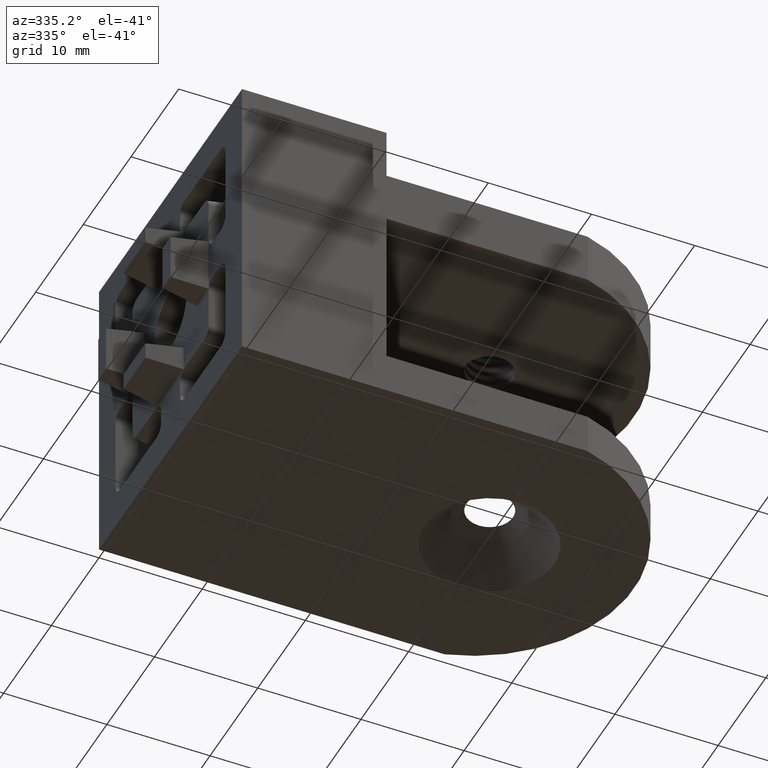
[diagram: clean part render]
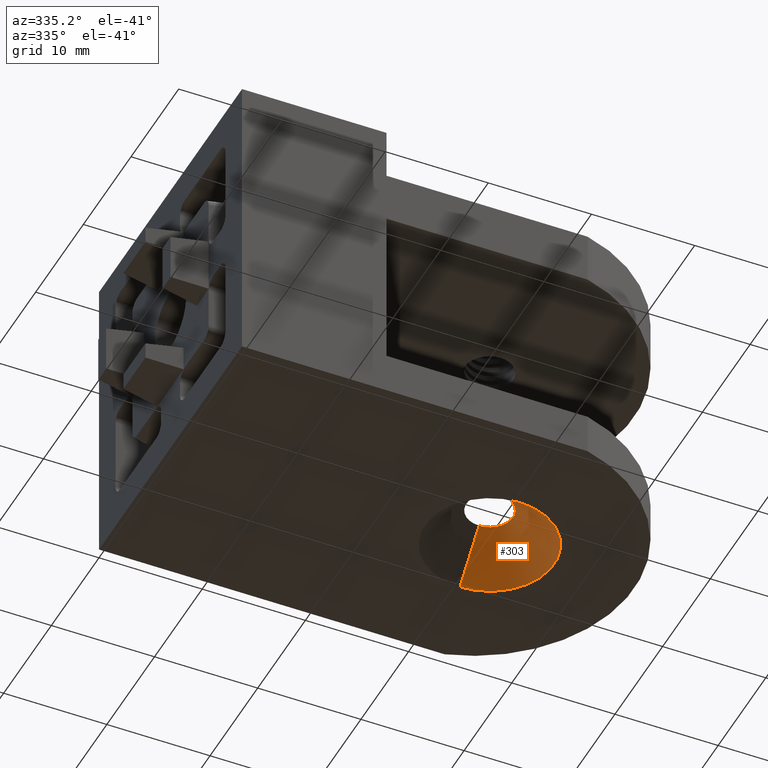
[diagram: same view with one face highlighted and labeled with its STEP entity id]
A machine part, auxiliary view. The second image highlights one B-rep face of the part: STEP entity #303.
In plain terms, the highlighted conical surface has half-angle 45 deg.
Its self-contained STEP definition (entity closure, byte-faithful):
#278 = EDGE_CURVE ( 'NONE', #1638, #1640, #1310, .T. ) ;
#281 = EDGE_CURVE ( 'NONE', #1626, #1631, #1315, .T. ) ;
#303 = ADVANCED_FACE ( 'NONE', ( #1345 ), #1346, .F. ) ;
#519 = CARTESIAN_POINT ( 'NONE',  ( 30.93645604300000000, 17.24999999999999600, -26.00000000000000400 ) ) ;
#520 = DIRECTION ( 'NONE',  ( 8.406408171397821100E-031, 0.7071067811865483500, -0.7071067811865466800 ) ) ;
#526 = CARTESIAN_POINT ( 'NONE',  ( 30.93645604300000000, 12.75000000000000200, -26.00000000000000400 ) ) ;
#527 = DIRECTION ( 'NONE',  ( 8.659560562355020400E-017, -0.7071067811865472400, -0.7071067811865479100 ) ) ;
#1310 = LINE ( 'NONE', #519, #1312 ) ;
#1312 = VECTOR ( 'NONE', #520, 1000.000000000000000 ) ;
#1315 = LINE ( 'NONE', #526, #1317 ) ;
#1317 = VECTOR ( 'NONE', #527, 999.9999999999998900 ) ;
#1345 = FACE_OUTER_BOUND ( 'NONE', #2140, .T. ) ;
#1346 = CONICAL_SURFACE ( 'NONE', #1491, 2.249999999999998700, 0.7853981633974487200 ) ;
#1491 = AXIS2_PLACEMENT_3D ( 'NONE', #1915, #1916, #1917 ) ;
#1626 = VERTEX_POINT ( 'NONE', #3538 ) ;
#1631 = VERTEX_POINT ( 'NONE', #3542 ) ;
#1638 = VERTEX_POINT ( 'NONE', #3549 ) ;
#1640 = VERTEX_POINT ( 'NONE', #3551 ) ;
#1915 = CARTESIAN_POINT ( 'NONE',  ( 30.93645604300000000, 15.00000000000000000, -26.00000000000000400 ) ) ;
#1916 = DIRECTION ( 'NONE',  ( 1.188845644683481400E-030, 7.709882115452481100E-016, -1.000000000000000000 ) ) ;
#1917 = DIRECTION ( 'NONE',  ( 0.0000000000000000000, 1.000000000000000000, 0.0000000000000000000 ) ) ;
#2140 = EDGE_LOOP ( 'NONE', ( #2448, #2453, #2452, #2451 ) ) ;
#2448 = ORIENTED_EDGE ( 'NONE', *, *, #281, .F. ) ;
#2451 = ORIENTED_EDGE ( 'NONE', *, *, #2636, .T. ) ;
#2452 = ORIENTED_EDGE ( 'NONE', *, *, #278, .T. ) ;
#2453 = ORIENTED_EDGE ( 'NONE', *, *, #2635, .T. ) ;
#2635 = EDGE_CURVE ( 'NONE', #1626, #1638, #3805, .T. ) ;
#2636 = EDGE_CURVE ( 'NONE', #1640, #1631, #3806, .T. ) ;
#2946 = CARTESIAN_POINT ( 'NONE',  ( 30.93645604300000000, 15.00000000000000000, -26.00000000000000400 ) ) ;
#2947 = DIRECTION ( 'NONE',  ( -1.188845644683481400E-030, -7.709882115452481100E-016, 1.000000000000000000 ) ) ;
#2948 = DIRECTION ( 'NONE',  ( 0.0000000000000000000, 1.000000000000000000, 0.0000000000000000000 ) ) ;
#2949 = CARTESIAN_POINT ( 'NONE',  ( 30.93645604300000000, 15.00000000000000400, -30.00000000000002800 ) ) ;
#2950 = DIRECTION ( 'NONE',  ( 1.188845644683481400E-030, 7.709882115452481100E-016, -1.000000000000000000 ) ) ;
#2951 = DIRECTION ( 'NONE',  ( 0.0000000000000000000, 1.000000000000000000, 5.551115123125759000E-016 ) ) ;
#3538 = CARTESIAN_POINT ( 'NONE',  ( 30.93645604300000000, 12.75000000000000200, -26.00000000000000400 ) ) ;
#3542 = CARTESIAN_POINT ( 'NONE',  ( 30.93645604300000000, 8.749999999999975100, -30.00000000000002800 ) ) ;
#3549 = CARTESIAN_POINT ( 'NONE',  ( 30.93645604300000000, 17.24999999999999600, -26.00000000000000400 ) ) ;
#3551 = CARTESIAN_POINT ( 'NONE',  ( 30.93645604300000000, 21.25000000000002500, -30.00000000000002500 ) ) ;
#3654 = AXIS2_PLACEMENT_3D ( 'NONE', #2946, #2947, #2948 ) ;
#3655 = AXIS2_PLACEMENT_3D ( 'NONE', #2949, #2950, #2951 ) ;
#3805 = CIRCLE ( 'NONE', #3654, 2.249999999999998700 ) ;
#3806 = CIRCLE ( 'NONE', #3655, 6.250000000000026600 ) ;